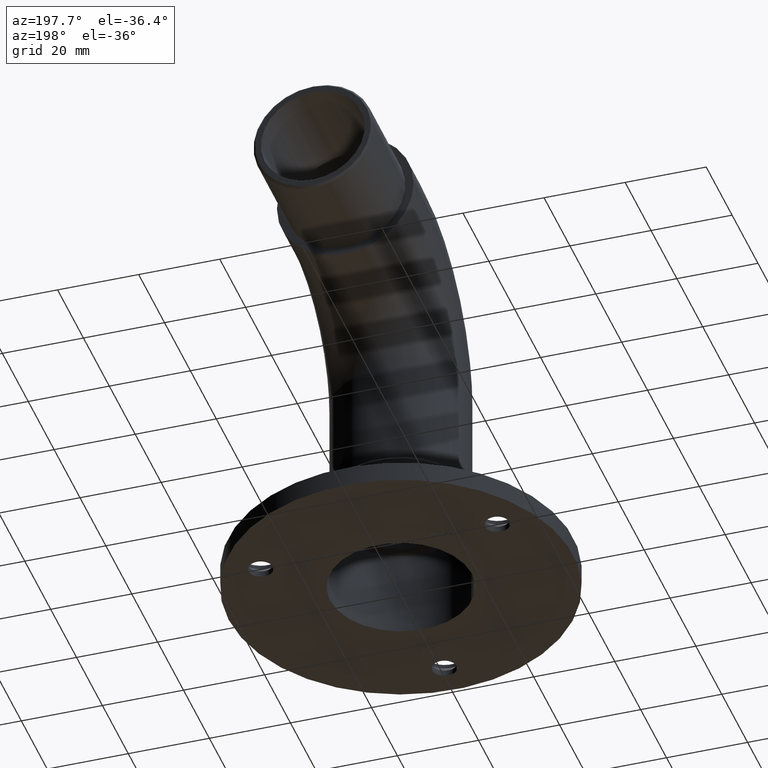
[diagram: clean part render]
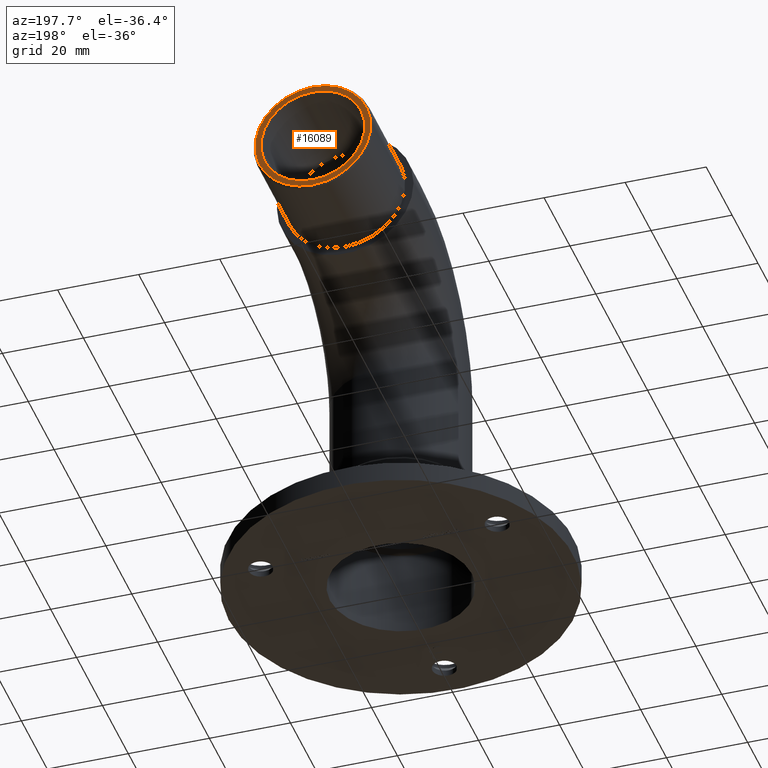
[diagram: same view with one face highlighted and labeled with its STEP entity id]
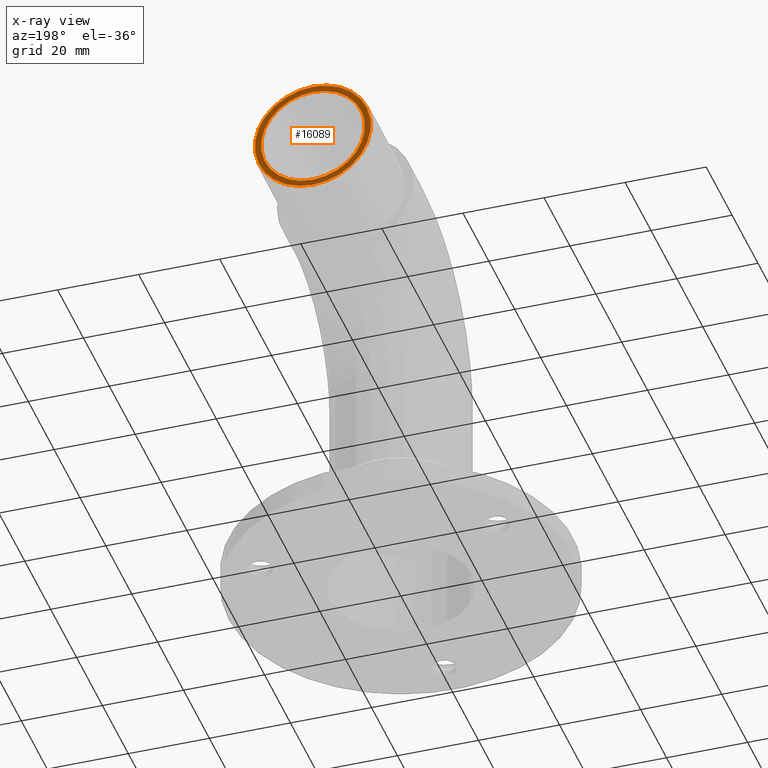
[diagram: x-ray of the same camera — body ghosted, the highlighted face saturated]
A machine part, auxiliary view. The second image highlights one B-rep face of the part: STEP entity #16089.
The next image is the same camera in x-ray: the body ghosted, the highlighted face saturated — about 0% of this face is hidden behind the body in this view.
In plain terms, the highlighted planar face has unit normal (0, 1, 0).
Its self-contained STEP definition (entity closure, byte-faithful):
#315 = DIRECTION ( 'NONE',  ( 0.000000000000000000, -9.704746718751362927E-16, 1.000000000000000000 ) ) ;
#538 = CARTESIAN_POINT ( 'NONE',  ( 0.000000000000000000, 67.99999999999978684, 83.99999999999992895 ) ) ;
#1352 = AXIS2_PLACEMENT_3D ( 'NONE', #1848, #5846, #3188 ) ;
#1587 = FACE_OUTER_BOUND ( 'NONE', #16442, .T. ) ;
#1733 = DIRECTION ( 'NONE',  ( 0.000000000000000000, 1.000000000000000000, 1.284980352575411319E-15 ) ) ;
#1848 = CARTESIAN_POINT ( 'NONE',  ( 0.000000000000000000, 67.99999999999978684, 83.99999999999992895 ) ) ;
#2429 = CARTESIAN_POINT ( 'NONE',  ( 0.000000000000000000, 67.99999999999978684, 83.99999999999992895 ) ) ;
#3188 = DIRECTION ( 'NONE',  ( 0.000000000000000000, -1.284980352575411319E-15, 1.000000000000000000 ) ) ;
#3417 = VERTEX_POINT ( 'NONE', #5554 ) ;
#5554 = CARTESIAN_POINT ( 'NONE',  ( 0.000000000000000000, 67.99999999999977263, 96.79999999999992610 ) ) ;
#5808 = EDGE_CURVE ( 'NONE', #7924, #7924, #11442, .T. ) ;
#5846 = DIRECTION ( 'NONE',  ( 0.000000000000000000, 1.000000000000000000, 1.284980352575411319E-15 ) ) ;
#6896 = ORIENTED_EDGE ( 'NONE', *, *, #5808, .T. ) ;
#7369 = PLANE ( 'NONE',  #1352 ) ;
#7727 = DIRECTION ( 'NONE',  ( 0.000000000000000000, 1.000000000000000000, 1.284980352575411319E-15 ) ) ;
#7784 = DIRECTION ( 'NONE',  ( 0.000000000000000000, -1.084202172485503842E-15, 1.000000000000000000 ) ) ;
#7820 = EDGE_CURVE ( 'NONE', #3417, #3417, #16975, .T. ) ;
#7924 = VERTEX_POINT ( 'NONE', #15898 ) ;
#9408 = ORIENTED_EDGE ( 'NONE', *, *, #7820, .F. ) ;
#11442 = CIRCLE ( 'NONE', #14008, 14.30000000000000782 ) ;
#14008 = AXIS2_PLACEMENT_3D ( 'NONE', #538, #1733, #315 ) ;
#15898 = CARTESIAN_POINT ( 'NONE',  ( 0.000000000000000000, 67.99999999999977263, 98.29999999999992610 ) ) ;
#16089 = ADVANCED_FACE ( 'NONE', ( #1587, #16344 ), #7369, .T. ) ;
#16175 = AXIS2_PLACEMENT_3D ( 'NONE', #2429, #7727, #7784 ) ;
#16344 = FACE_BOUND ( 'NONE', #16524, .T. ) ;
#16442 = EDGE_LOOP ( 'NONE', ( #6896 ) ) ;
#16524 = EDGE_LOOP ( 'NONE', ( #9408 ) ) ;
#16975 = CIRCLE ( 'NONE', #16175, 12.80000000000000604 ) ;